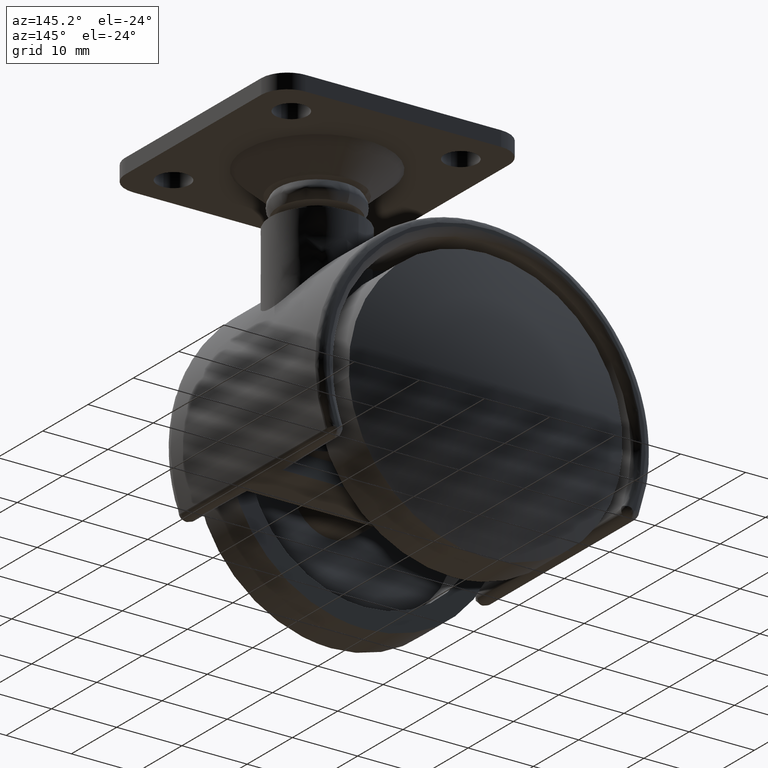
[diagram: clean part render]
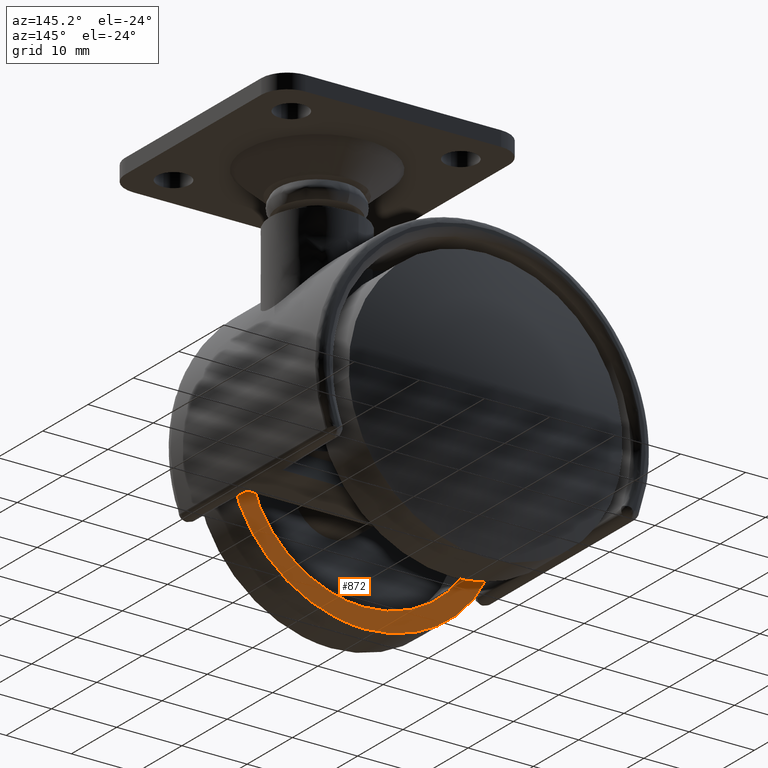
[diagram: same view with one face highlighted and labeled with its STEP entity id]
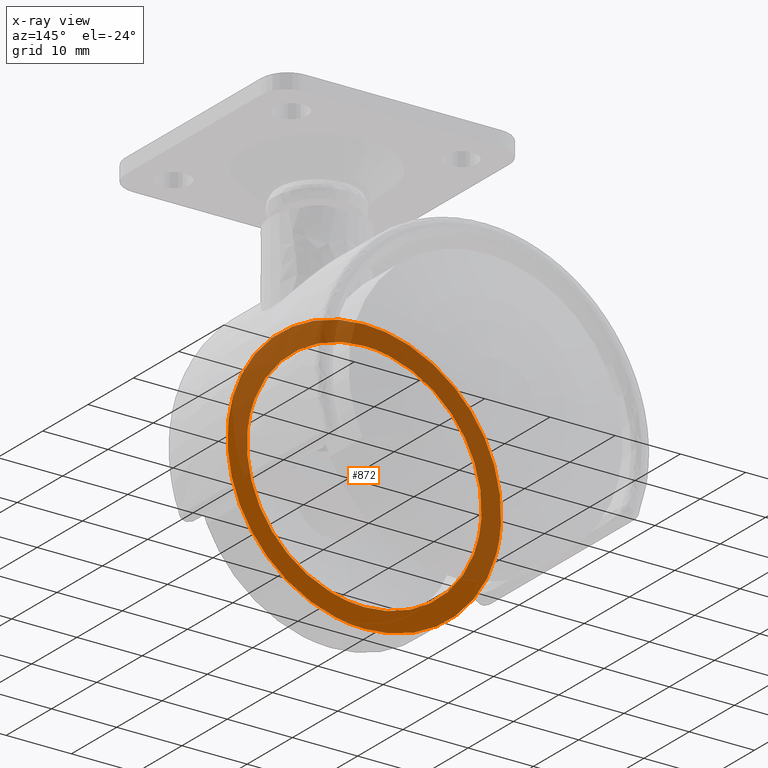
[diagram: x-ray of the same camera — body ghosted, the highlighted face saturated]
A machine part, auxiliary view. The second image highlights one B-rep face of the part: STEP entity #872.
The next image is the same camera in x-ray: the body ghosted, the highlighted face saturated — about 60% of this face is hidden behind the body in this view.
In plain terms, the highlighted face is a freeform B-spline surface patch.
Its self-contained STEP definition (entity closure, byte-faithful):
#457=CARTESIAN_POINT('',(17.874171845220008,-9.750000000000000,2.124613105375699));
#458=VERTEX_POINT('',#457);
#464=CARTESIAN_POINT('',(0.0,-9.750000000000000,-18.0));
#465=VERTEX_POINT('',#464);
#466=CARTESIAN_POINT('',(17.874171845220012,-9.749999999999998,2.124613105375699));
#467=CARTESIAN_POINT('',(18.000000000000004,-9.750000000000000,1.066032578027540));
#468=CARTESIAN_POINT('',(18.0,-9.750000000000000,0.0));
#469=CARTESIAN_POINT('',(18.000000000000007,-9.750000000000000,-18.000000000000007));
#470=CARTESIAN_POINT('',(0.0,-9.750000000000000,-18.0));
#478=(BOUNDED_CURVE()B_SPLINE_CURVE(2,(#466,#467,#468,#469,#470),.UNSPECIFIED.,.F.,.U.)B_SPLINE_CURVE_WITH_KNOTS((3,2,3),(0.229562503001067,0.250000000000000,0.500000000000000),.UNSPECIFIED.)CURVE()GEOMETRIC_REPRESENTATION_ITEM()RATIONAL_B_SPLINE_CURVE((0.956026811980530,0.976055982877969,1.0,0.707106781186547,1.0))REPRESENTATION_ITEM(''));
#479=EDGE_CURVE('',#458,#465,#478,.T.);
#481=CARTESIAN_POINT('',(-17.966427014271670,-9.750000000000000,-1.098863203833088));
#482=VERTEX_POINT('',#481);
#483=CARTESIAN_POINT('',(0.0,-9.750000000000000,-18.0));
#484=CARTESIAN_POINT('',(-16.932719126028278,-9.750000000000000,-18.000000000000007));
#485=CARTESIAN_POINT('',(-17.966427014271670,-9.750000000000000,-1.098863203833088));
#493=(BOUNDED_CURVE()B_SPLINE_CURVE(2,(#483,#484,#485),.UNSPECIFIED.,.F.,.U.)B_SPLINE_CURVE_WITH_KNOTS((3,3),(0.500000000000000,0.739333063157213),.UNSPECIFIED.)CURVE()GEOMETRIC_REPRESENTATION_ITEM()RATIONAL_B_SPLINE_CURVE((1.0,0.719603875053602,0.976072257953877))REPRESENTATION_ITEM(''));
#494=EDGE_CURVE('',#465,#482,#493,.T.);
#568=CARTESIAN_POINT('',(0.0,-9.750000000000000,18.0));
#569=VERTEX_POINT('',#568);
#570=CARTESIAN_POINT('',(-17.966427014271670,-9.750000000000000,-1.098863203833088));
#571=CARTESIAN_POINT('',(-18.0,-9.750000000000000,-0.549944470746249));
#572=CARTESIAN_POINT('',(-18.0,-9.750000000000000,0.0));
#573=CARTESIAN_POINT('',(-18.000000000000007,-9.750000000000000,18.000000000000007));
#574=CARTESIAN_POINT('',(0.0,-9.750000000000000,18.0));
#582=(BOUNDED_CURVE()B_SPLINE_CURVE(2,(#570,#571,#572,#573,#574),.UNSPECIFIED.,.F.,.U.)B_SPLINE_CURVE_WITH_KNOTS((3,2,3),(0.739333063157213,0.750000000000000,1.0),.UNSPECIFIED.)CURVE()GEOMETRIC_REPRESENTATION_ITEM()RATIONAL_B_SPLINE_CURVE((0.976072257953877,0.987502906132946,1.0,0.707106781186547,1.0))REPRESENTATION_ITEM(''));
#583=EDGE_CURVE('',#482,#569,#582,.T.);
#585=CARTESIAN_POINT('',(0.0,-9.750000000000000,18.0));
#586=CARTESIAN_POINT('',(15.987144275982264,-9.750000000000002,18.000000000000004));
#587=CARTESIAN_POINT('',(17.874171845220012,-9.749999999999998,2.124613105375699));
#595=(BOUNDED_CURVE()B_SPLINE_CURVE(2,(#585,#586,#587),.UNSPECIFIED.,.F.,.U.)B_SPLINE_CURVE_WITH_KNOTS((3,3),(0.0,0.229562503001067),.UNSPECIFIED.)CURVE()GEOMETRIC_REPRESENTATION_ITEM()RATIONAL_B_SPLINE_CURVE((1.0,0.731050798308578,0.956026811980530))REPRESENTATION_ITEM(''));
#596=EDGE_CURVE('',#569,#458,#595,.T.);
#624=CARTESIAN_POINT('',(20.853201967231360,-9.750000000000146,2.478702828818913));
#625=VERTEX_POINT('',#624);
#626=CARTESIAN_POINT('',(0.0,-9.750000000000000,-21.0));
#627=VERTEX_POINT('',#626);
#628=CARTESIAN_POINT('',(20.853201967231367,-9.750000000000146,2.478702828818913));
#629=CARTESIAN_POINT('',(20.999999999999996,-9.750000000000000,1.243698378106394));
#630=CARTESIAN_POINT('',(21.0,-9.750000000000000,0.0));
#631=CARTESIAN_POINT('',(21.000000000000007,-9.750000000000000,-21.000000000000007));
#632=CARTESIAN_POINT('',(0.0,-9.750000000000000,-21.0));
#640=(BOUNDED_CURVE()B_SPLINE_CURVE(2,(#628,#629,#630,#631,#632),.UNSPECIFIED.,.F.,.U.)B_SPLINE_CURVE_WITH_KNOTS((3,2,3),(0.229562603988611,0.250000000000000,0.500000000000000),.UNSPECIFIED.)CURVE()GEOMETRIC_REPRESENTATION_ITEM()RATIONAL_B_SPLINE_CURVE((0.956027009920400,0.976056101192236,1.0,0.707106781186547,1.0))REPRESENTATION_ITEM(''));
#641=EDGE_CURVE('',#625,#627,#640,.T.);
#682=CARTESIAN_POINT('',(-20.960832049034071,-9.749999999999961,-1.281998366514052));
#683=VERTEX_POINT('',#682);
#689=CARTESIAN_POINT('',(0.0,-9.750000000000000,-21.0));
#690=CARTESIAN_POINT('',(-19.754847199496840,-9.750000000000000,-20.999999999999996));
#691=CARTESIAN_POINT('',(-20.960832049034078,-9.749999999999961,-1.281998366514052));
#699=(BOUNDED_CURVE()B_SPLINE_CURVE(2,(#689,#690,#691),.UNSPECIFIED.,.F.,.U.)B_SPLINE_CURVE_WITH_KNOTS((3,3),(0.500000000000000,0.739333134812547),.UNSPECIFIED.)CURVE()GEOMETRIC_REPRESENTATION_ITEM()RATIONAL_B_SPLINE_CURVE((1.0,0.719603791104156,0.976072411525082))REPRESENTATION_ITEM(''));
#700=EDGE_CURVE('',#627,#683,#699,.T.);
#723=CARTESIAN_POINT('',(0.0,-9.750000000000000,21.0));
#724=VERTEX_POINT('',#723);
#725=CARTESIAN_POINT('',(0.0,-9.750000000000000,21.0));
#726=CARTESIAN_POINT('',(18.651679545705321,-9.750000000000002,21.000000000000007));
#727=CARTESIAN_POINT('',(20.853201967231367,-9.750000000000146,2.478702828818913));
#735=(BOUNDED_CURVE()B_SPLINE_CURVE(2,(#725,#726,#727),.UNSPECIFIED.,.F.,.U.)B_SPLINE_CURVE_WITH_KNOTS((3,3),(0.0,0.229562603988611),.UNSPECIFIED.)CURVE()GEOMETRIC_REPRESENTATION_ITEM()RATIONAL_B_SPLINE_CURVE((1.0,0.731050679994311,0.956027009920400))REPRESENTATION_ITEM(''));
#736=EDGE_CURVE('',#724,#625,#735,.T.);
#738=CARTESIAN_POINT('',(-20.960832049034078,-9.749999999999961,-1.281998366514052));
#739=CARTESIAN_POINT('',(-21.000000000000004,-9.750000000000000,-0.641597518022081));
#740=CARTESIAN_POINT('',(-21.0,-9.750000000000000,0.0));
#741=CARTESIAN_POINT('',(-21.000000000000007,-9.750000000000000,21.000000000000007));
#742=CARTESIAN_POINT('',(0.0,-9.750000000000000,21.0));
#750=(BOUNDED_CURVE()B_SPLINE_CURVE(2,(#738,#739,#740,#741,#742),.UNSPECIFIED.,.F.,.U.)B_SPLINE_CURVE_WITH_KNOTS((3,2,3),(0.739333134812547,0.750000000000000,1.0),.UNSPECIFIED.)CURVE()GEOMETRIC_REPRESENTATION_ITEM()RATIONAL_B_SPLINE_CURVE((0.976072411525082,0.987502990082391,1.0,0.707106781186547,1.0))REPRESENTATION_ITEM(''));
#751=EDGE_CURVE('',#683,#724,#750,.T.);
#855=CARTESIAN_POINT('',(-23.097390374325489,-9.750000000000000,23.097899918595850));
#856=CARTESIAN_POINT('',(-23.097390374325489,-9.750000000000000,-23.097901045123638));
#857=CARTESIAN_POINT('',(23.097518047474601,-9.750000000000000,23.097899918595850));
#858=CARTESIAN_POINT('',(23.097518047474590,-9.750000000000000,-23.097901045123638));
#859=B_SPLINE_SURFACE_WITH_KNOTS('',1,1,((#855,#857),(#856,#858)),.UNSPECIFIED.,.F.,.F.,.U.,(2,2),(2,2),(0.0,46.195800963719492),(0.0,46.194908421800093),.UNSPECIFIED.);
#860=ORIENTED_EDGE('',*,*,#736,.T.);
#861=ORIENTED_EDGE('',*,*,#641,.T.);
#862=ORIENTED_EDGE('',*,*,#700,.T.);
#863=ORIENTED_EDGE('',*,*,#751,.T.);
#864=EDGE_LOOP('',(#860,#861,#862,#863));
#865=FACE_OUTER_BOUND('',#864,.T.);
#866=ORIENTED_EDGE('',*,*,#494,.F.);
#867=ORIENTED_EDGE('',*,*,#479,.F.);
#868=ORIENTED_EDGE('',*,*,#596,.F.);
#869=ORIENTED_EDGE('',*,*,#583,.F.);
#870=EDGE_LOOP('',(#866,#867,#868,#869));
#871=FACE_BOUND('',#870,.T.);
#872=ADVANCED_FACE('',(#865,#871),#859,.F.);